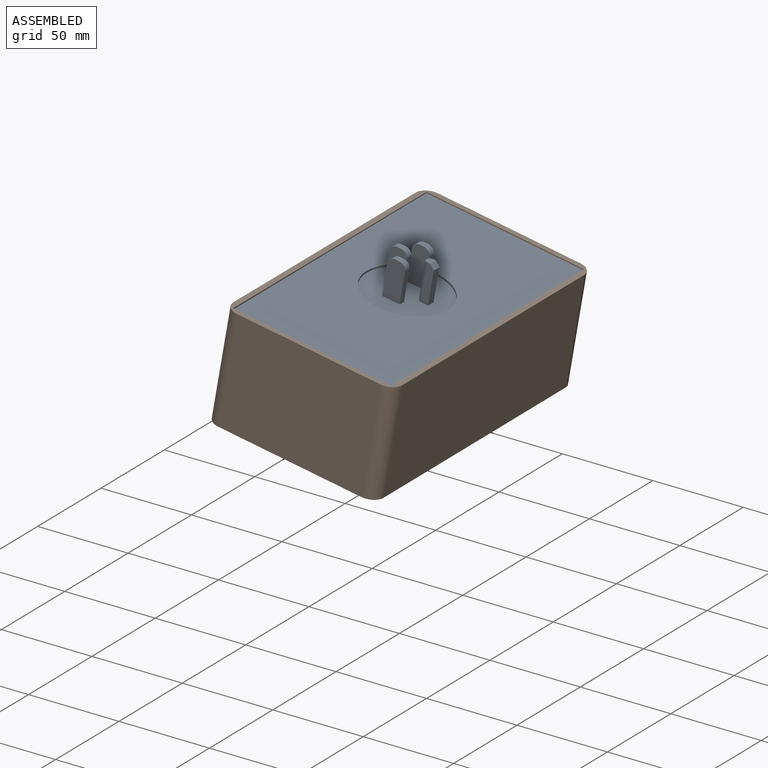
[diagram: assembled view]
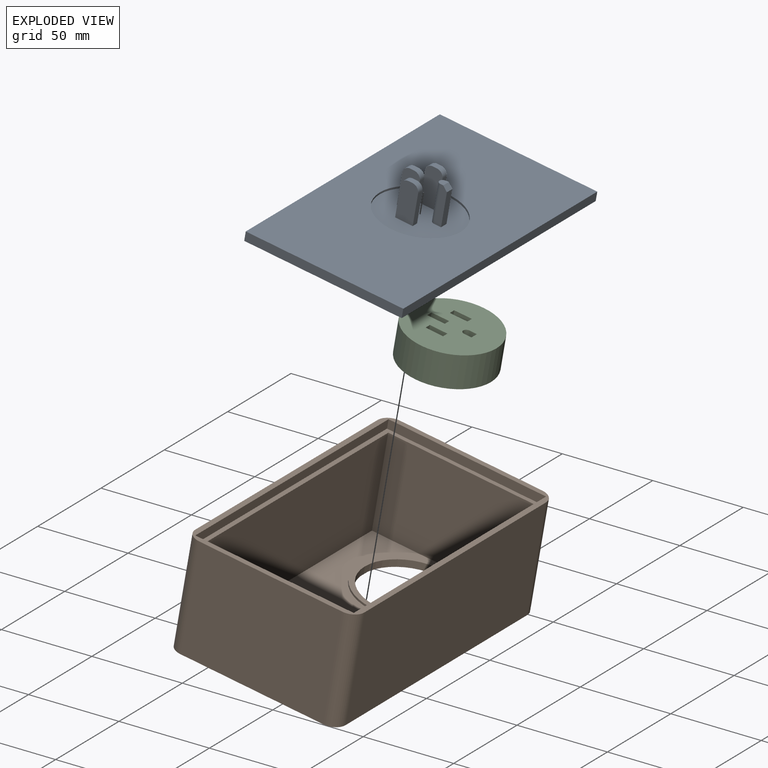
[diagram: exploded view]
GUIDED TOUR — MATED ASSEMBLY (Onshape document a7ec9005dcd5711a59109263, AutoMate assembly a7ec9005dcd5711a59109263_d1cc076338bba4c44e293150_12a7a56d9b28d3fdbe63908b_default)

This assembly has 3 components, labeled P0..P2 below (a component is one placed occurrence of a part; the same part can appear more than once), held together by 2 mates. A mate is a constraint between two components; its type names the relative motion it leaves free:
  FASTENED — locks the two components together rigidly (no relative motion).
Axis/direction vectors are unit vectors and 'through' points are millimeter coordinates, both in the assembly's world frame.

MATES
  1. FASTENED "Fastened 1": P2 <-> P1, direction (-0.174, 0.000, -0.985) through (-134.65, 15.51, -185.16) mm
  2. FASTENED "Fastened 2": P0 <-> P1, direction (-0.174, 0.000, -0.985) through (-126.02, -28.29, -135.50) mm

ASSEMBLY ORDER
  1. P2 — the base component [order verified]
  2. P1 [order verified]
  3. P0 [order verified]
Order-tag legend:
  [order verified] — this step's position reverses a verified removal order: the component was checked to insert without passing through the ones already placed.

Of the 3 components, 3 carry the full construction recipe — the FeatureScript program that regenerates the part's solid from scratch; the rest are supplied as boundary geometry only.
Each toured component is shown spotlighted twice — in the assembled view, then in the exploded view, where a leader line traces a displaced component back to its assembled socket (saturated green if recipe-attached, orange if geometry-only; every other component desaturated gray) — followed by its recipe or geometry summary and the mates that hold it.
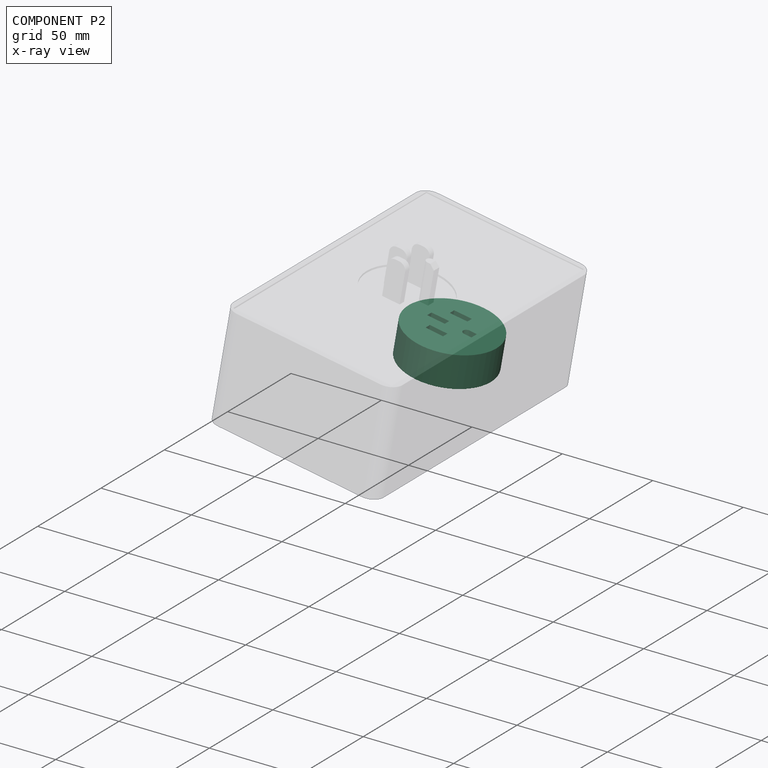
[diagram: component P2 — x-ray view]
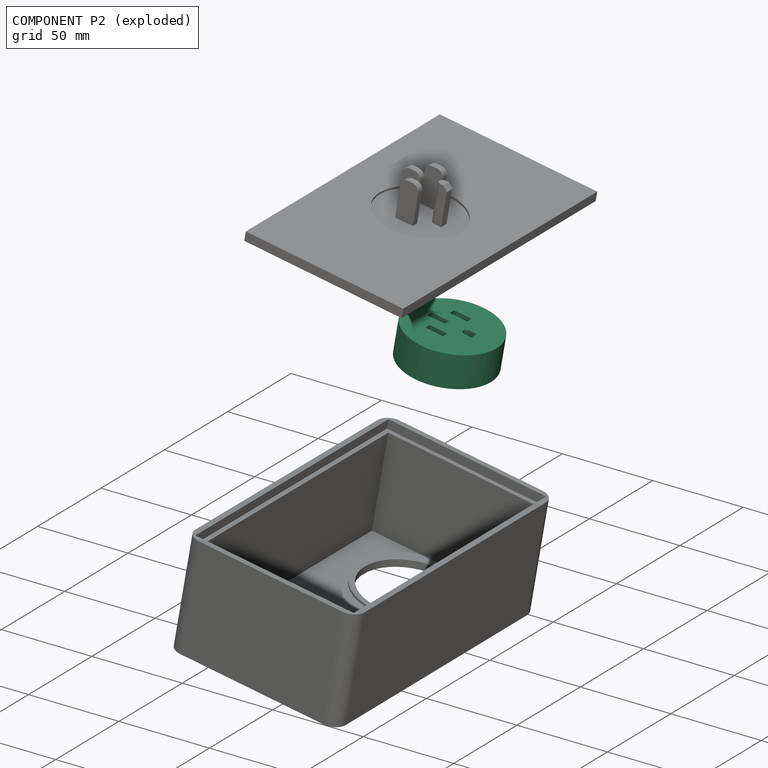
[diagram: component P2 — exploded]
COMPONENT P2 — recipe-attached (CADFS 00675463, mesh-verified: the recipe's output STEP matches this component's geometry to below the mesh-comparison resolution (tessellation chordal tolerance ~0.108 mm)).
Held by: FASTENED mate "Fastened 1" to P1.
Construction recipe (FeatureScript — the CAD program that rebuilds this solid; sketch coordinates are in the units given by the * unit suffixes, e.g. mm):

FeatureScript 1511;
import(path : "onshape/std/geometry.fs", version : "1511.0");
import(path : "onshape/std/common.fs", version : "1511.0");
const mm = millimeter;
const VERTEX = EntityType.VERTEX;
const EDGE = EntityType.EDGE;
const FACE = EntityType.FACE;
const BODY = EntityType.BODY;
function v(x, y){return vector(x, y);}
function OD(order){return orderDisambiguation(order);}
function OSD(set){return originalSetDisambiguation(set);}
function TD(topology){return topologyDisambiguation(topology);}
function TDD(query){return trueDependencyDisambiguation(query);}
function sQuery(a, b, c) {return sketchEntityQuery(a, b, c);}

annotation { "Feature Type Name" : "Feature", "Feature Type Description" : "" }
export const myFeature = defineFeature(function(context is Context, id is Id, definition is map)
    precondition{}
    {
        {
            var Q0;
            Q0=qCreatedBy(makeId("Top.planeOp"),FACE);
            var sketch = newSketch(context, id + "F0", { "sketchPlane" : qUnion([Q0])});
            skCircle(sketch, "E0", {"center": v(0, 0) * mm, "radius": 24.67 * mm});
            skLineSegment(sketch, "E1.bottom", {"start": v(-7.93, -10.13) * mm, "end": v(-7.93, -6.69) * mm});
            skLineSegment(sketch, "E1.top", {"start": v(1.94, -10.13) * mm, "end": v(1.94, -6.69) * mm});
            skLineSegment(sketch, "E1.left", {"start": v(-7.93, -10.13) * mm, "end": v(1.94, -10.13) * mm});
            skLineSegment(sketch, "E1.right", {"start": v(-7.93, -6.69) * mm, "end": v(1.94, -6.69) * mm});
            skLineSegment(sketch, "E2.MirrorCS", {"start": v(-13.8, -0.52) * mm, "end": v(-3.93, -0.52) * mm});
            skLineSegment(sketch, "E3.MirrorCS", {"start": v(-7.93, 9.1) * mm, "end": v(1.94, 9.1) * mm});
            skLineSegment(sketch, "E4.MirrorCS", {"start": v(-7.93, 12.53) * mm, "end": v(-7.93, 9.1) * mm});
            skLineSegment(sketch, "E5.MirrorCS", {"start": v(-7.93, 12.53) * mm, "end": v(1.94, 12.53) * mm});
            skLineSegment(sketch, "E6.MirrorCS", {"start": v(1.94, 12.53) * mm, "end": v(1.94, 9.1) * mm});
            skLineSegment(sketch, "E7.MirrorCS", {"start": v(-13.8, 2.92) * mm, "end": v(-3.93, 2.92) * mm});
            skLineSegment(sketch, "E8", {"start": v(-13.8, -0.52) * mm, "end": v(-13.8, 2.92) * mm});
            skLineSegment(sketch, "E9", {"start": v(-3.93, -0.52) * mm, "end": v(-3.93, 2.92) * mm});
            skLineSegment(sketch, "E10.bottom", {"start": v(11.33, -0.94) * mm, "end": v(11.33, 3.36) * mm});
            skLineSegment(sketch, "E10.left", {"start": v(11.33, -0.94) * mm, "end": v(7.33, -0.94) * mm});
            skLineSegment(sketch, "E10.right", {"start": v(11.33, 3.36) * mm, "end": v(7.33, 3.36) * mm});
            skArc(sketch, "E11", {"start": v(7.33, 3.36) * mm, "mid": v(5.19, 1.2) * mm, "end": v(7.33, -0.94) * mm});
            skSolve(sketch);
        }
        {
            var Q0;
            Q0 = qSketchRegion(id + "F0", true);
            extrude(context, id + "F1", {"entities" : qUnion([Q0]), "depth" : 18.8 * mm, "offsetDistance" : 25 * mm});
        }
        {
            var Q0;
            Q0 = qSketchRegion(id + "F0", true);
            var Q1;
            Q1=makeQuery(id+"F0.imprint","IMPRINT",FACE,{"disambiguationData":[TD([[makeQuery(id+"F0.imprint","IMPRINT",EDGE,{"derivedFrom":sQuery(id+"F0.wireOp",EDGE,"E1.bottom")}),-1.0]])]});
            var Q2;
            Q2=makeQuery(id+"F0.imprint","IMPRINT",FACE,{"disambiguationData":[TD([[makeQuery(id+"F0.imprint","IMPRINT",EDGE,{"derivedFrom":sQuery(id+"F0.wireOp",EDGE,"463338f3-baaf-430d-bb06-9a12d469661e0.MirrorCS")}),-1.0]])]});
            var Q3;
            Q3=makeQuery(id+"F0.imprint","IMPRINT",FACE,{"disambiguationData":[TD([[makeQuery(id+"F0.imprint","IMPRINT",EDGE,{"derivedFrom":sQuery(id+"F0.wireOp",EDGE,"8IOIInOe-9Ach-LeR5-Veee-tgPsVm3crWa1")}),1.0]])]});
            extrude(context, id + "F2", {"entities" : qUnion([Q0, Q1, Q2, Q3]), "operationType" : NewBodyOperationType.REMOVE, "depth" : 0.8 * mm, "offsetDistance" : 25 * mm});
        }
    });
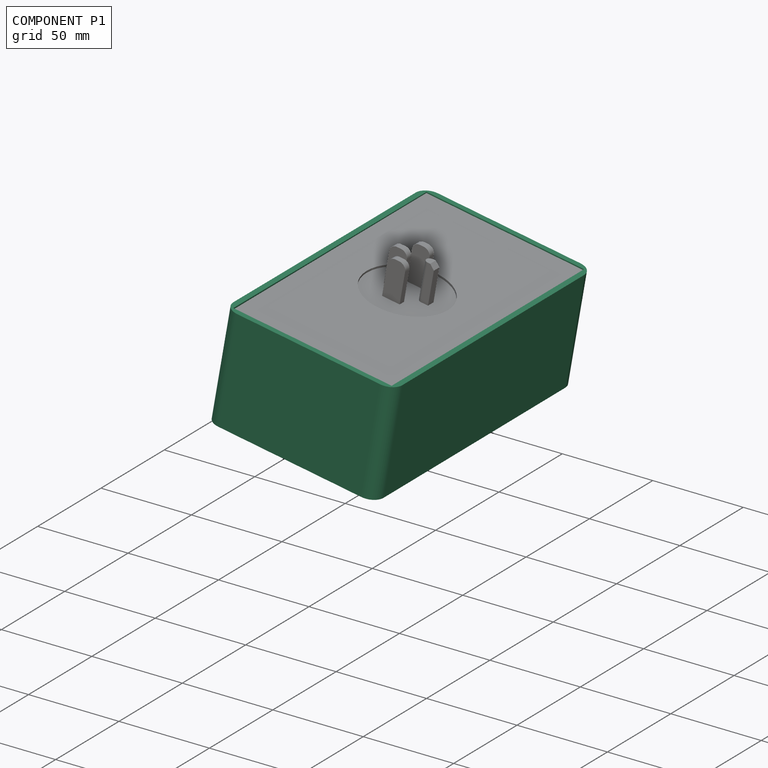
[diagram: component P1 — assembled]
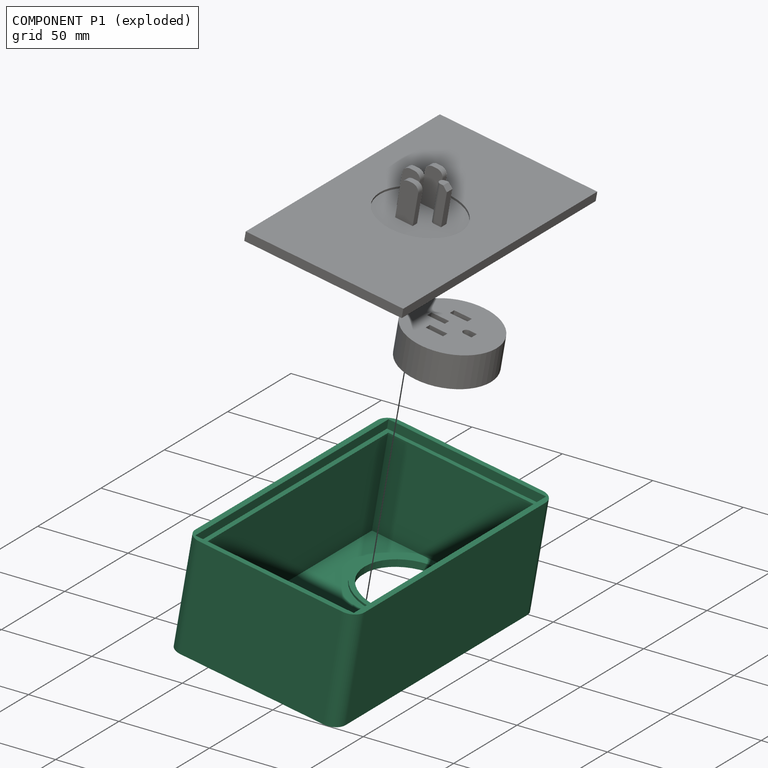
[diagram: component P1 — exploded]
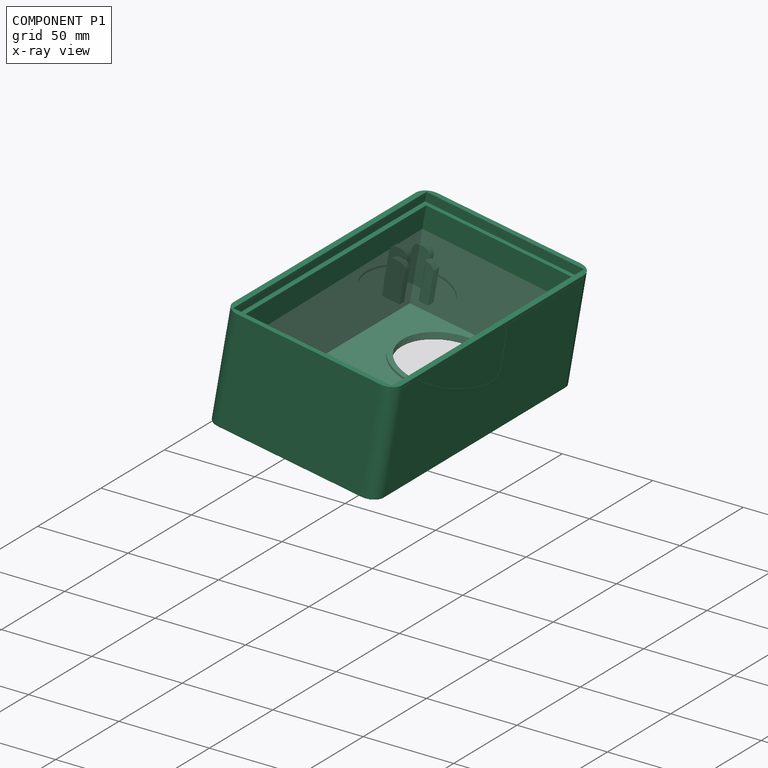
[diagram: component P1 — x-ray view]
COMPONENT P1 — recipe-attached (CADFS 00675462, mesh-verified: the recipe's output STEP matches this component's geometry to below the mesh-comparison resolution (tessellation chordal tolerance ~0.291 mm)).
Held by: FASTENED mate "Fastened 1" to P2; FASTENED mate "Fastened 2" to P0.
Construction recipe (FeatureScript — the CAD program that rebuilds this solid; sketch coordinates are in the units given by the * unit suffixes, e.g. mm):

FeatureScript 1511;
import(path : "onshape/std/geometry.fs", version : "1511.0");
import(path : "onshape/std/common.fs", version : "1511.0");
const mm = millimeter;
const VERTEX = EntityType.VERTEX;
const EDGE = EntityType.EDGE;
const FACE = EntityType.FACE;
const BODY = EntityType.BODY;
function v(x, y){return vector(x, y);}
function OD(order){return orderDisambiguation(order);}
function OSD(set){return originalSetDisambiguation(set);}
function TD(topology){return topologyDisambiguation(topology);}
function TDD(query){return trueDependencyDisambiguation(query);}
function sQuery(a, b, c) {return sketchEntityQuery(a, b, c);}

annotation { "Feature Type Name" : "Feature", "Feature Type Description" : "" }
export const myFeature = defineFeature(function(context is Context, id is Id, definition is map)
    precondition{}
    {
        {
            var Q0;
            Q0=qCreatedBy(makeId("Top.planeOp"),FACE);
            var sketch = newSketch(context, id + "F0", { "sketchPlane" : qUnion([Q0])});
            skLineSegment(sketch, "E0.right", {"start": v(47.1, 80.1) * mm, "end": v(47.33, -78.1) * mm});
            skLineSegment(sketch, "E1.MirrorCS", {"start": v(-47.3, 80.1) * mm, "end": v(-47.53, -78.1) * mm});
            skLineSegment(sketch, "E2", {"start": v(-47.3, 80.1) * mm, "end": v(47.1, 80.1) * mm});
            skLineSegment(sketch, "E3", {"start": v(-47.53, -78.1) * mm, "end": v(47.33, -78.1) * mm});
            skLineSegment(sketch, "E4.0", {"start": v(-44.3, 77.1) * mm, "end": v(44.1, 77.1) * mm});
            skLineSegment(sketch, "E4.1", {"start": v(-44.3, 77.1) * mm, "end": v(-44.53, -75.1) * mm});
            skLineSegment(sketch, "E4.2", {"start": v(-44.53, -75.1) * mm, "end": v(44.33, -75.1) * mm});
            skLineSegment(sketch, "E4.3", {"start": v(44.1, 77.1) * mm, "end": v(44.33, -75.1) * mm});
            skCircle(sketch, "E5", {"center": v(0, 44.68) * mm, "radius": 27.67 * mm});
            skCircle(sketch, "E6.0", {"center": v(0, 44.68) * mm, "radius": 24.67 * mm});
            skCircle(sketch, "E7", {"center": v(0, -50.63) * mm, "radius": 6.57 * mm});
            skLineSegment(sketch, "E8.0", {"start": v(-41.8, 74.6) * mm, "end": v(41.6, 74.6) * mm});
            skLineSegment(sketch, "E8.1", {"start": v(-41.8, 74.6) * mm, "end": v(-42.02, -72.6) * mm});
            skLineSegment(sketch, "E8.2", {"start": v(-42.02, -72.6) * mm, "end": v(41.82, -72.6) * mm});
            skLineSegment(sketch, "E8.3", {"start": v(41.6, 74.6) * mm, "end": v(41.82, -72.6) * mm});
            skSolve(sketch);
        }
        {
            var Q0;
            Q0=makeQuery(id+"F0.imprint","IMPRINT",FACE,{"disambiguationData":[TD([[makeQuery(id+"F0.imprint","IMPRINT",EDGE,{"derivedFrom":sQuery(id+"F0.wireOp",EDGE,"E0.right")}),-1.0]])]});
            extrude(context, id + "F1", {"entities" : qUnion([Q0]), "depth" : 60 * mm, "offsetDistance" : 25 * mm});
        }
        {
            var Q0;
            Q0=makeQuery(id+"F0.imprint","IMPRINT",FACE,{"disambiguationData":[TD([[makeQuery(id+"F0.imprint","IMPRINT",EDGE,{"derivedFrom":sQuery(id+"F0.wireOp",EDGE,"E4.0")}),-1.0]])]});
            extrude(context, id + "F2", {"entities" : qUnion([Q0]), "operationType" : NewBodyOperationType.ADD, "depth" : 55 * mm, "offsetDistance" : 25 * mm});
        }
        {
            var Q0;
            Q0=makeQuery(id+"F0.imprint","IMPRINT",FACE,{"disambiguationData":[TD([[makeQuery(id+"F0.imprint","IMPRINT",EDGE,{"derivedFrom":sQuery(id+"F0.wireOp",EDGE,"E5")}),1.0]])]});
            extrude(context, id + "F3", {"entities" : qUnion([Q0]), "operationType" : NewBodyOperationType.ADD, "depth" : 4 * mm, "offsetDistance" : 25 * mm});
        }
        {
            var Q0;
            Q0=makeQuery(id+"F0.imprint","IMPRINT",FACE,{"disambiguationData":[TD([[makeQuery(id+"F0.imprint","IMPRINT",EDGE,{"derivedFrom":sQuery(id+"F0.wireOp",EDGE,"E5")}),-1.0]])]});
            extrude(context, id + "F4", {"entities" : qUnion([Q0]), "operationType" : NewBodyOperationType.ADD, "depth" : 2.9 * mm, "offsetDistance" : 25 * mm});
        }
        {
            var Q0;
            Q0=makeQuery(id+"F1.opExtrude","SWEPT_EDGE",EDGE,{"disambiguationData":[OSD([sQuery(id+"F0.wireOp",EDGE,"E0.right"),sQuery(id+"F0.wireOp",EDGE,"E3")])]});
            var Q1;
            Q1=makeQuery(id+"F1.opExtrude","SWEPT_EDGE",EDGE,{"disambiguationData":[OSD([sQuery(id+"F0.wireOp",EDGE,"E1.MirrorCS"),sQuery(id+"F0.wireOp",EDGE,"E3")])]});
            var Q2;
            Q2=makeQuery(id+"F1.opExtrude","SWEPT_EDGE",EDGE,{"disambiguationData":[OSD([sQuery(id+"F0.wireOp",EDGE,"E1.MirrorCS"),sQuery(id+"F0.wireOp",EDGE,"E2")])]});
            var Q3;
            Q3=makeQuery(id+"F1.opExtrude","SWEPT_EDGE",EDGE,{"disambiguationData":[OSD([sQuery(id+"F0.wireOp",EDGE,"E0.right"),sQuery(id+"F0.wireOp",EDGE,"E2")])]});
            fillet(context, id + "F5", {"entities" : qUnion([Q0, Q1, Q2, Q3]), "radius" : 7.26 * mm, "tangentPropagation" : true, "allowEdgeOverflow" : false});
        }
    });
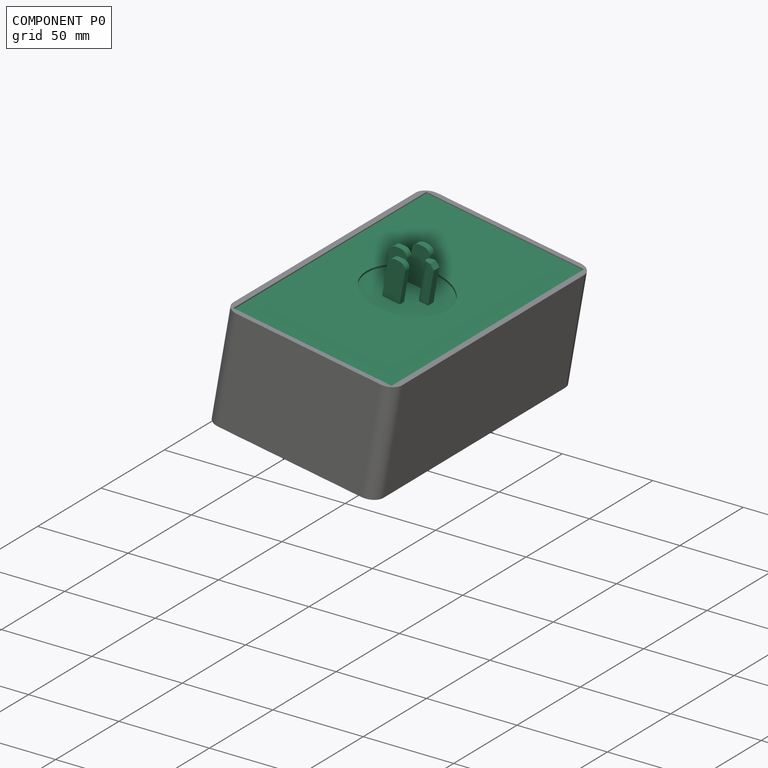
[diagram: component P0 — assembled]
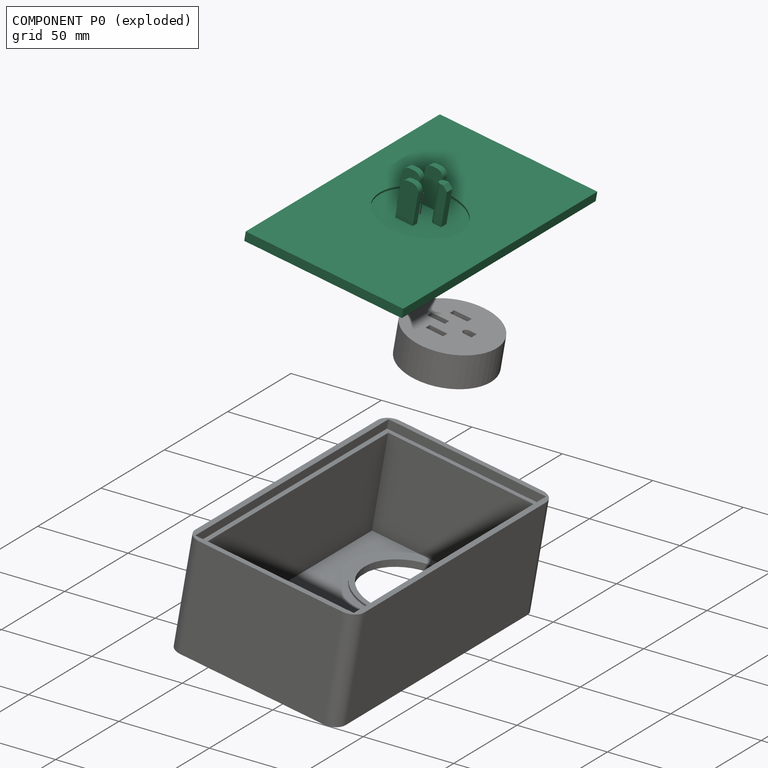
[diagram: component P0 — exploded]
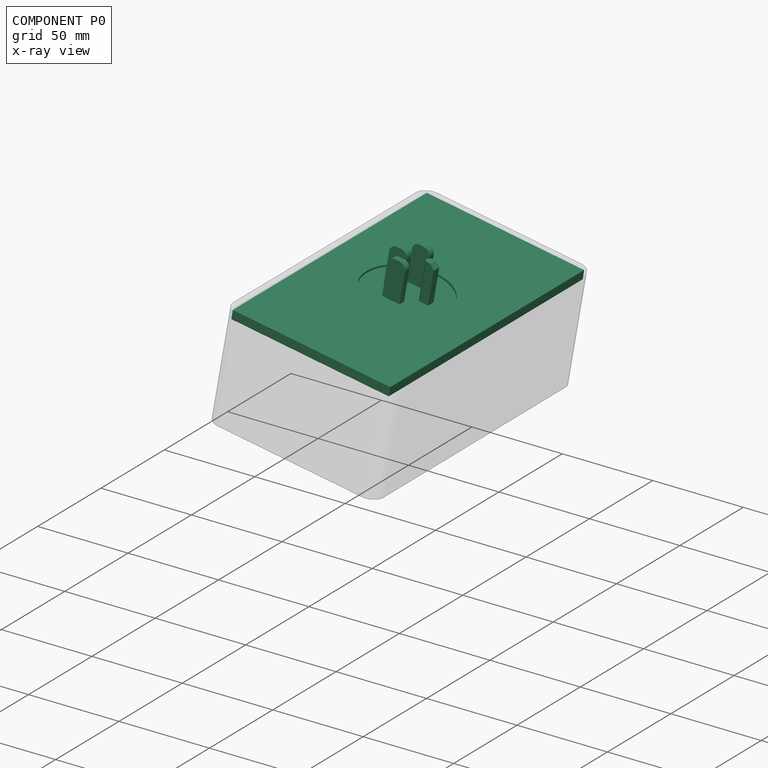
[diagram: component P0 — x-ray view]
COMPONENT P0 — recipe-attached (CADFS 00675464, mesh-verified: the recipe's output STEP matches this component's geometry to below the mesh-comparison resolution (tessellation chordal tolerance ~0.268 mm)).
Held by: FASTENED mate "Fastened 2" to P1.
Construction recipe (FeatureScript — the CAD program that rebuilds this solid; sketch coordinates are in the units given by the * unit suffixes, e.g. mm):

FeatureScript 1511;
import(path : "onshape/std/geometry.fs", version : "1511.0");
import(path : "onshape/std/common.fs", version : "1511.0");
const mm = millimeter;
const VERTEX = EntityType.VERTEX;
const EDGE = EntityType.EDGE;
const FACE = EntityType.FACE;
const BODY = EntityType.BODY;
function v(x, y){return vector(x, y);}
function OD(order){return orderDisambiguation(order);}
function OSD(set){return originalSetDisambiguation(set);}
function TD(topology){return topologyDisambiguation(topology);}
function TDD(query){return trueDependencyDisambiguation(query);}
function sQuery(a, b, c) {return sketchEntityQuery(a, b, c);}

annotation { "Feature Type Name" : "Feature", "Feature Type Description" : "" }
export const myFeature = defineFeature(function(context is Context, id is Id, definition is map)
    precondition{}
    {
        {
            var Q0;
            Q0=qCreatedBy(makeId("Front.planeOp"),FACE);
            var sketch = newSketch(context, id + "F0", { "sketchPlane" : qUnion([Q0])});
            skLineSegment(sketch, "E0.bottom", {"start": v(-39.21, 77.32) * mm, "end": v(49.18, 77.32) * mm});
            skLineSegment(sketch, "E0.top", {"start": v(-39.21, -75.89) * mm, "end": v(49.18, -75.89) * mm});
            skLineSegment(sketch, "E0.left", {"start": v(-39.21, 77.32) * mm, "end": v(-39.21, -75.89) * mm});
            skLineSegment(sketch, "E0.right", {"start": v(49.18, 77.32) * mm, "end": v(49.18, -75.89) * mm});
            skCircle(sketch, "E1", {"center": v(4.91, -0.16) * mm, "radius": 22.67 * mm});
            skLineSegment(sketch, "E2.bottom", {"start": v(-1.14, -11.26) * mm, "end": v(-1.14, -7.82) * mm});
            skLineSegment(sketch, "E2.top", {"start": v(8.73, -11.26) * mm, "end": v(8.73, -7.82) * mm});
            skLineSegment(sketch, "E2.left", {"start": v(-1.14, -11.26) * mm, "end": v(8.73, -11.26) * mm});
            skLineSegment(sketch, "E2.right", {"start": v(-1.14, -7.82) * mm, "end": v(8.73, -7.82) * mm});
            skLineSegment(sketch, "E3.MirrorCS", {"start": v(-7.02, -1.65) * mm, "end": v(2.85, -1.65) * mm});
            skLineSegment(sketch, "E4.MirrorCS", {"start": v(-1.14, 7.96) * mm, "end": v(8.73, 7.96) * mm});
            skLineSegment(sketch, "E5.MirrorCS", {"start": v(-1.14, 11.4) * mm, "end": v(-1.14, 7.96) * mm});
            skLineSegment(sketch, "E6.MirrorCS", {"start": v(-1.14, 11.4) * mm, "end": v(8.73, 11.4) * mm});
            skLineSegment(sketch, "E7.MirrorCS", {"start": v(8.73, 11.4) * mm, "end": v(8.73, 7.96) * mm});
            skLineSegment(sketch, "E8.MirrorCS", {"start": v(-7.02, 1.79) * mm, "end": v(2.85, 1.79) * mm});
            skLineSegment(sketch, "E9", {"start": v(-7.02, -1.65) * mm, "end": v(-7.02, 1.79) * mm});
            skLineSegment(sketch, "E10", {"start": v(2.85, -1.65) * mm, "end": v(2.85, 1.79) * mm});
            skLineSegment(sketch, "E11.bottom", {"start": v(18.11, -2.07) * mm, "end": v(18.11, 2.22) * mm});
            skLineSegment(sketch, "E11.left", {"start": v(18.11, -2.07) * mm, "end": v(14.12, -2.07) * mm});
            skLineSegment(sketch, "E11.right", {"start": v(18.11, 2.22) * mm, "end": v(14.12, 2.22) * mm});
            skArc(sketch, "E12", {"start": v(14.12, 2.22) * mm, "mid": v(11.97, 0.07) * mm, "end": v(14.12, -2.07) * mm});
            skSolve(sketch);
        }
        {
            var Q0;
            Q0=makeQuery(id+"F0.imprint","IMPRINT",FACE,{"disambiguationData":[TD([[makeQuery(id+"F0.imprint","IMPRINT",EDGE,{"derivedFrom":sQuery(id+"F0.wireOp",EDGE,"E0.bottom")}),-1.0]])]});
            extrude(context, id + "F1", {"entities" : qUnion([Q0]), "depth" : 5 * mm, "offsetDistance" : 25 * mm});
        }
        {
            var Q0;
            Q0=makeQuery(id+"F0.imprint","IMPRINT",FACE,{"disambiguationData":[TD([[makeQuery(id+"F0.imprint","IMPRINT",EDGE,{"derivedFrom":sQuery(id+"F0.wireOp",EDGE,"d919d92a-e6f7-40fd-a133-639b44a9ff66.bottom")}),1.0]])]});
            var Q1;
            Q1=makeQuery(id+"F0.imprint","IMPRINT",FACE,{"disambiguationData":[TD([[makeQuery(id+"F0.imprint","IMPRINT",EDGE,{"derivedFrom":sQuery(id+"F0.wireOp",EDGE,"E1")}),1.0]])]});
            extrude(context, id + "F2", {"entities" : qUnion([Q0, Q1]), "operationType" : NewBodyOperationType.ADD, "depth" : 3.9 * mm, "offsetDistance" : 25 * mm});
        }
        {
            var Q0;
            Q0=makeQuery(id+"F0.imprint","IMPRINT",FACE,{"disambiguationData":[TD([[makeQuery(id+"F0.imprint","IMPRINT",EDGE,{"derivedFrom":sQuery(id+"F0.wireOp",EDGE,"92b3ff77-899c-4692-b596-e14258b6b191")}),1.0]])]});
            var Q1;
            Q1=makeQuery(id+"F0.imprint","IMPRINT",FACE,{"disambiguationData":[TD([[makeQuery(id+"F0.imprint","IMPRINT",EDGE,{"derivedFrom":sQuery(id+"F0.wireOp",EDGE,"f2a1dbcd-aa5e-4286-995f-65eb86ff6750.MirrorCS")}),-1.0]])]});
            var Q2;
            Q2=makeQuery(id+"F0.imprint","IMPRINT",FACE,{"disambiguationData":[TD([[makeQuery(id+"F0.imprint","IMPRINT",EDGE,{"derivedFrom":sQuery(id+"F0.wireOp",EDGE,"d919d92a-e6f7-40fd-a133-639b44a9ff66.bottom")}),-1.0]])]});
            var Q3;
            Q3=makeQuery(id+"F0.imprint","IMPRINT",FACE,{"disambiguationData":[TD([[makeQuery(id+"F0.imprint","IMPRINT",EDGE,{"derivedFrom":sQuery(id+"F0.wireOp",EDGE,"E2.bottom")}),-1.0]])]});
            var Q4;
            Q4=makeQuery(id+"F0.imprint","IMPRINT",FACE,{"disambiguationData":[TD([[makeQuery(id+"F0.imprint","IMPRINT",EDGE,{"derivedFrom":sQuery(id+"F0.wireOp",EDGE,"E3.MirrorCS")}),1.0]])]});
            var Q5;
            Q5=makeQuery(id+"F0.imprint","IMPRINT",FACE,{"disambiguationData":[TD([[makeQuery(id+"F0.imprint","IMPRINT",EDGE,{"derivedFrom":sQuery(id+"F0.wireOp",EDGE,"E4.MirrorCS")}),1.0]])]});
            var Q6;
            Q6=makeQuery(id+"F0.imprint","IMPRINT",FACE,{"disambiguationData":[TD([[makeQuery(id+"F0.imprint","IMPRINT",EDGE,{"derivedFrom":sQuery(id+"F0.wireOp",EDGE,"E11.bottom")}),1.0]])]});
            extrude(context, id + "F3", {"entities" : qUnion([Q0, Q1, Q2, Q3, Q4, Q5, Q6]), "operationType" : NewBodyOperationType.ADD, "depth" : 25 * mm, "offsetDistance" : 25 * mm});
        }
        {
            var Q0;
            Q0=makeQuery(id+"F3.opExtrude","CAP_EDGE",EDGE,{"disambiguationData":[OSD([sQuery(id+"F0.wireOp",EDGE,"E2.bottom")])],"isStart":false});
            var Q1;
            Q1=makeQuery(id+"F3.opExtrude","CAP_EDGE",EDGE,{"disambiguationData":[OSD([sQuery(id+"F0.wireOp",EDGE,"E2.top")])],"isStart":false});
            var Q2;
            Q2=makeQuery(id+"F3.opExtrude","CAP_EDGE",EDGE,{"disambiguationData":[OSD([sQuery(id+"F0.wireOp",EDGE,"E9")])],"isStart":false});
            var Q3;
            Q3=makeQuery(id+"F3.opExtrude","CAP_EDGE",EDGE,{"disambiguationData":[OSD([sQuery(id+"F0.wireOp",EDGE,"E10")])],"isStart":false});
            var Q4;
            Q4=makeQuery(id+"F3.opExtrude","CAP_EDGE",EDGE,{"disambiguationData":[OSD([sQuery(id+"F0.wireOp",EDGE,"E7.MirrorCS")])],"isStart":false});
            var Q5;
            Q5=makeQuery(id+"F3.opExtrude","CAP_EDGE",EDGE,{"disambiguationData":[OSD([sQuery(id+"F0.wireOp",EDGE,"E5.MirrorCS")])],"isStart":false});
            fillet(context, id + "F4", {"entities" : qUnion([Q0, Q1, Q2, Q3, Q4, Q5]), "radius" : 3.86 * mm, "tangentPropagation" : true, "allowEdgeOverflow" : false});
        }
        {
            var Q0;
            Q0=makeQuery(id+"F3.opExtrude","CAP_EDGE",EDGE,{"disambiguationData":[OSD([sQuery(id+"F0.wireOp",EDGE,"E11.bottom")])],"isStart":false});
            chamfer(context, id + "F5", {"entities" : qUnion([Q0]), "width" : 2.5 * mm, "tangentPropagation" : true});
        }
    });
PROVENANCE & LICENSES
Assembly (occurrences, transforms, mates, per-part STEP geometry): AutoMate dataset, Zenodo record 7776208, CC0.
Construction recipes: CADFS (HuggingFace VladPyatov/CADFS, CC-BY-4.0, layered over the ABC dataset), FeatureScript reconstruction programs keyed by ABC model id.
Join: ABC meta listings map ABC model id -> Onshape documentId; within a shared document, parts are matched by geometric signature (bounding-box dims + volume at 0.1% relative tolerance, exact B-rep face/solid counts).
Verification: 3 of this assembly's 3 components carry a recipe attachment, and every attachment is mesh-verified: the CADFS STEP and the AutoMate member STEP were compared as meshes in their shared local frame (symmetric sampled-point-to-mesh distance); worst across the 3 attachments: below the mesh-comparison resolution (tessellation chordal tolerance ~0.291 mm) on a 194 mm part.
Renders: orthographic iso camera (az 35 / el 25); the floor grid conveys scale (grid pitch printed in each image; no ruler). In the exploded view each component is displaced by its stored offset vector: the offsets alone carry the explosion direction (mate normal/axis signs are not orientation cues and do not encode it), and separation distances are assigned per mate-chain, not proportionally to assembly-order depth.
